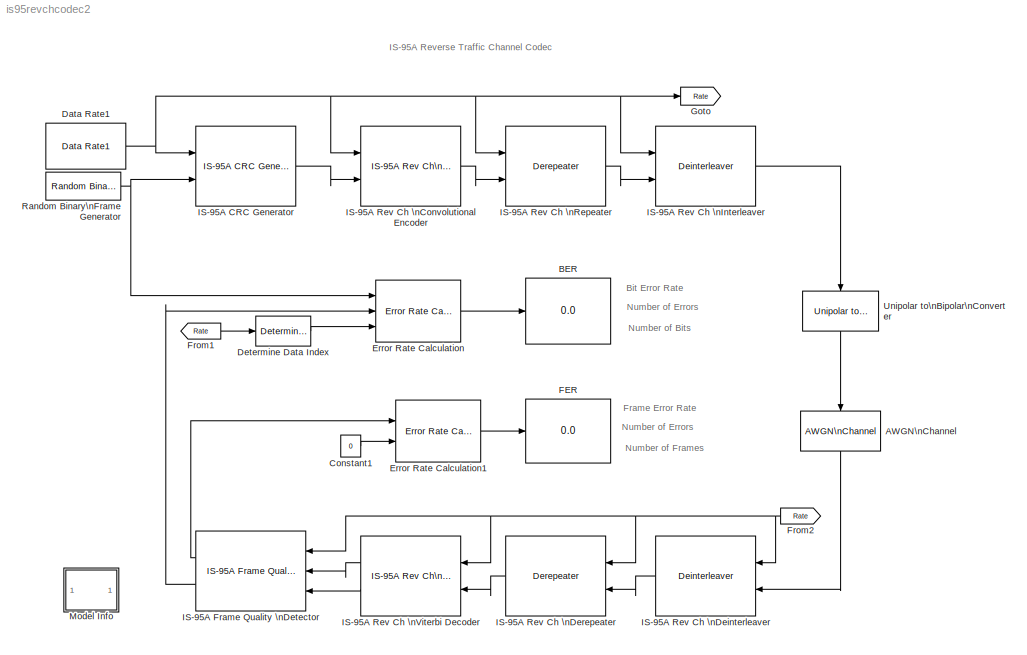
MODEL is95revchcodec2
KIND model
CONFIG AbsTol = 1e-6
CONFIG FixedStep = auto
CONFIG MaxStep = auto
CONFIG MinStep = auto
CONFIG RelTol = 1e-3
CONFIG Solver = VariableStepDiscrete
CONFIG SolverMode = SingleTasking
CONFIG StartTime = 0.0
CONFIG StopTime = 20
BLOCK [Reference] AWGN\nChannel  REF=commchan2/AWGN\nChannel
  EsNodB = -3
  Ports = [1, 1]
  Ps = 1
  SNRdB = 10
  SourceBlock = commchan2/AWGN\nChannel
  SourceType = AWGN Channel
  Tsym = 1/(50*576)
  noiseMode = Signal to noise ratio  (Es/No)
  seed = 11243
  variance = 1
BLOCK [Display] BER
  Decimation = 1
  Floating = off
  Format = short
  Ports = [1]
  SampleTime = -1
BLOCK [Constant] Constant1
  Value = 0
  VectorParams1D = on
BLOCK [Reference] Data Rate1  REF=cdmaprivate/Data Rate1  (lib defined in mdl_204704d9dd4c)
  Ports = [0, 1]
  SourceBlock = cdmaprivate/Data Rate1
  SourceType = Mobile Station Transmitter Data Rate
  rate = Full
BLOCK [Reference] Determine Data Index  REF=cdmaprivate/Determine Data Index  (lib defined in mdl_204704d9dd4c)
  Ports = [1, 1]
  SourceBlock = cdmaprivate/Determine Data Index
  SourceType = Determine Data Index
  rateSet = Rate Set I
BLOCK [Reference] Error Rate Calculation  REF=commsink2/Error Rate Calculation
  N = 0
  PMode = Port
  Ports = [3, 1]
  RsMode2 = off
  SourceBlock = commsink2/Error Rate Calculation
  SourceType = Error Rate Calculation
  WsName = ErrorVec
  cp_mode = Select samples from port
  st_delay = 4*268
  subframe = []
BLOCK [Reference] Error Rate Calculation1  REF=commsink2/Error Rate Calculation
  N = 0
  PMode = Port
  Ports = [2, 1]
  RsMode2 = off
  SourceBlock = commsink2/Error Rate Calculation
  SourceType = Error Rate Calculation
  WsName = ErrorVec
  cp_mode = Entire frame
  st_delay = 4
  subframe = []
BLOCK [Display] FER
  Decimation = 1
  Floating = off
  Format = short
  Ports = [1]
  SampleTime = -1
BLOCK [From] From1
  CloseFcn = tagdialog Close
  GotoTag = Rate
BLOCK [From] From2
  CloseFcn = tagdialog Close
  GotoTag = Rate
BLOCK [Goto] Goto
  GotoTag = Rate
  TagVisibility = local
BLOCK [Reference] IS-95A CRC Generator  REF=cdmalibv1p1/IS-95A Common/IS-95A CRC Generator  (lib defined in mdl_d5ab24ac8168)
  Ports = [2, 1]
  SourceBlock = cdmalibv1p1/IS-95A Common/IS-95A CRC Generator
  SourceType = IS-95A CRC Generator
  ch_type = Traffic
  rate_set = Rate Set I
BLOCK [Reference] IS-95A Frame Quality \nDetector  REF=cdmalibv1p1/IS-95A Common/IS-95A Frame Quality \nDetector  (lib defined in mdl_d5ab24ac8168)
  Ports = [3, 2]
  SourceBlock = cdmalibv1p1/IS-95A Common/IS-95A Frame Quality \nDetector
  SourceType = IS-95A Frame Quality Detector
  chType = Traffic
  rate2_metric = 0.9*1.5
  rate3_metric = 0.85*1.5
  rateSet = Rate Set I
BLOCK [Reference] IS-95A Rev Ch \nConvolutional Encoder  REF=cdmalibv1p1/IS-95A Mobile Station Transmitter/IS-95A Rev Ch\nConvolutional Encoder  (lib defined in mdl_d5ab24ac8168)
  Ports = [2, 1]
  SourceBlock = cdmalibv1p1/IS-95A Mobile Station Transmitter/IS-95A Rev Ch\nConvolutional Encoder
  SourceType = IS-95A Rev Ch Convolutional Encoder
  ch_type = Traffic
  enc_state = []
  rate_set = Rate Set I
BLOCK [Reference] IS-95A Rev Ch \nDeinterleaver  REF=cdmalibv1p1/IS-95A Mobile Station Transmitter/IS-95A Rev Ch\nInterleaver//Deinterleaver  (lib defined in mdl_d5ab24ac8168)
  Ports = [2, 1]
  SourceBlock = cdmalibv1p1/IS-95A Mobile Station Transmitter/IS-95A Rev Ch\nInterleaver//Deinterleaver
  SourceType = IS-95A Rev Ch Interleaver/Deinterleaver
  ch_type = Traffic
  int_select = Deinterleaver
BLOCK [Reference] IS-95A Rev Ch \nDerepeater  REF=cdmalibv1p1/IS-95A Mobile Station Transmitter/IS-95A Rev Ch\nRepeater//Derepeater  (lib defined in mdl_d5ab24ac8168)
  Ports = [2, 1]
  SourceBlock = cdmalibv1p1/IS-95A Mobile Station Transmitter/IS-95A Rev Ch\nRepeater//Derepeater
  SourceType = IS-95A Rev Ch Repeater/Derepeater
  ch_type = Traffic
  rep_select = Derepeater
BLOCK [Reference] IS-95A Rev Ch \nInterleaver  REF=cdmalibv1p1/IS-95A Mobile Station Transmitter/IS-95A Rev Ch\nInterleaver//Deinterleaver  (lib defined in mdl_d5ab24ac8168)
  Ports = [2, 1]
  SourceBlock = cdmalibv1p1/IS-95A Mobile Station Transmitter/IS-95A Rev Ch\nInterleaver//Deinterleaver
  SourceType = IS-95A Rev Ch Interleaver/Deinterleaver
  ch_type = Traffic
  int_select = Interleaver
BLOCK [Reference] IS-95A Rev Ch \nRepeater  REF=cdmalibv1p1/IS-95A Mobile Station Transmitter/IS-95A Rev Ch\nRepeater//Derepeater  (lib defined in mdl_d5ab24ac8168)
  Ports = [2, 1]
  SourceBlock = cdmalibv1p1/IS-95A Mobile Station Transmitter/IS-95A Rev Ch\nRepeater//Derepeater
  SourceType = IS-95A Rev Ch Repeater/Derepeater
  ch_type = Traffic
  rep_select = Repeater
BLOCK [Reference] IS-95A Rev Ch \nViterbi Decoder  REF=cdmalibv1p1/IS-95A Base Station Receiver/IS-95A Rev Ch\nViterbi Decoder  (lib defined in mdl_d5ab24ac8168)
  Ports = [2, 2]
  SourceBlock = cdmalibv1p1/IS-95A Base Station Receiver/IS-95A Rev Ch\nViterbi Decoder
  SourceType = IS-95A Rev Ch Viterbi Decoder
  chType = Traffic
  decodeLenRatio = 1
  rateSet = Rate Set I
  traceBackLenRatio = 1
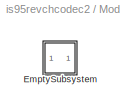
BLOCK [SubSystem] Model Info
  CopyFcn = slcm CopyBlock;
  DeleteFcn = slcm Cancel;
  InitFcn = slcm('UpdateAllCMBlocksInThisModelInit')
  LoadFcn = slcm LoadBlock;
  MaskCallbackString = ||||||||||||||||||||||||||||||
  MaskDescription = This block allows revision control information to be displayed within the model.
  MaskDisplay = text(str2num(LeftAlignmentValue), 0.5, MaskDisplayString, 'HorizontalAlignment', HorizontalTextAlignment)\n
  MaskEnableString = on,on,on,on,on,on,on,on,on,on,on,on,on,on,on,on,on,on,on,on,on,on,on,on,on,on,on,on,on,on,on
  MaskIconFrame = on
  MaskIconOpaque = on
  MaskIconRotate = none
  MaskIconUnits = normalized
  MaskPromptString = InitialSaveTempField|InitialBlockCM|BlockCM|Frame|SaveTempField|DisplayStringWithTags|MaskDisplayString|HorizontalTextAlignment|LeftAlignmentValue|SourceBlockDiagram|TagMaxNumber|CMTag1|CMTag2|CMTag3|CMTag4|CMTag5|CMTag6|CMTag7|CMTag8|CMTag9|CMTag10|CMTag11|CMTag12|CMTag13|CMTag14|CMTag15|CMTag16|CMTag17|CMTag18|CMTag19|CMTag20
  MaskSelfModifiable = on
  MaskStyleString = edit,edit,edit,edit,edit,edit,edit,edit,edit,edit,edit,edit,edit,edit,edit,edit,edit,edit,edit,edit,edit,edit,edit,edit,edit,edit,edit,edit,edit,edit,edit
  MaskToolTipString = on,on,on,on,on,on,on,on,on,on,on,on,on,on,on,on,on,on,on,on,on,on,on,on,on,on,on,on,on,on,on
  MaskTunableValueString = on,on,on,on,on,on,on,on,on,on,on,on,on,on,on,on,on,on,on,on,on,on,on,on,on,on,on,on,on,on,on
  MaskType = CMBlock
  MaskValueString = |none|none|on||Info|Info|Center|0.5|is95revchcodec2|20||||||||||||||||||||
  MaskVariableAliases = ,,,,,,,,,,,,,,,,,,,,,,,,,,,,,,
  MaskVariables = InitialSaveTempField=&1;InitialBlockCM=&2;BlockCM=&3;Frame=&4;SaveTempField=&5;DisplayStringWithTags=&6;MaskDisplayString=&7;HorizontalTextAlignment=&8;LeftAlignmentValue=&9;SourceBlockDiagram=&10;TagMaxNumber=@11;CMTag1=&12;CMTag2=&13;CMTag3=&14;CMTag4=&15;CMTag5=&16;CMTag6=&17;CMTag7=&18;CMTag8=&19;CMTag9=&20;CMTag10=&21;CMTag11=&22;CMTag12=&23;CMTag13=&24;CMTag14=&25;CMTag15=&26;CMTag16=&27;CMT...<+45ch>
  MaskVisibilityString = off,off,off,off,off,off,off,off,off,off,off,off,off,off,off,off,off,off,off,off,off,off,off,off,off,off,off,off,off,off,off
  NameChangeFcn = slcm Rename;
  OpenFcn = cdmademohelp;
  Ports = []
  PostSaveFcn = slcm('UpdateAllCMBlocksInThisModel')
  RTWFcnNameOpts = Auto
  RTWFileNameOpts = Auto
  RTWSystemCode = Auto
  ShowPortLabels = on
  TreatAsAtomicUnit = off
BLOCK [SubSystem] Model Info/EmptySubsystem
  Ports = []
  RTWFcnNameOpts = Auto
  RTWFileNameOpts = Auto
  RTWSystemCode = Auto
  ShowPortLabels = on
  TreatAsAtomicUnit = off
BLOCK [Reference] Random Binary\nFrame Generator  REF=cdmaprivate/Random Binary\nFrame Generator  (lib defined in mdl_204704d9dd4c)
  N = 268
  Ports = [0, 1]
  SourceBlock = cdmaprivate/Random Binary\nFrame Generator
  SourceType = Random Binary Frame Generator
  Ts = 1/(50*268)
  seed = 119940
BLOCK [Reference] Unipolar to\nBipolar\nConverter  REF=commutil2/Unipolar to\nBipolar\nConverter
  M = 2
  Ports = [1, 1]
  SourceBlock = commutil2/Unipolar to\nBipolar\nConverter
  SourceType = Unipolar to Bipolar Converter
  polarity = Negative
LINE AWGN\nChannel:1 -> IS-95A Rev Ch \nDeinterleaver:2
LINE Constant1:1 -> Error Rate Calculation1:2
NET Data Rate1:1 -> Goto:1, IS-95A CRC Generator:1, IS-95A Rev Ch \nConvolutional Encoder:1, IS-95A Rev Ch \nInterleaver:1, IS-95A Rev Ch \nRepeater:1
LINE Determine Data Index:1 -> Error Rate Calculation:3
LINE Error Rate Calculation1:1 -> FER:1
LINE Error Rate Calculation:1 -> BER:1
LINE From1:1 -> Determine Data Index:1
NET From2:1 -> IS-95A Frame Quality \nDetector:1, IS-95A Rev Ch \nDeinterleaver:1, IS-95A Rev Ch \nDerepeater:1, IS-95A Rev Ch \nViterbi Decoder:1
LINE IS-95A CRC Generator:1 -> IS-95A Rev Ch \nConvolutional Encoder:2
LINE IS-95A Frame Quality \nDetector:1 -> Error Rate Calculation1:1
LINE IS-95A Frame Quality \nDetector:2 -> Error Rate Calculation:2
LINE IS-95A Rev Ch \nConvolutional Encoder:1 -> IS-95A Rev Ch \nRepeater:2
LINE IS-95A Rev Ch \nDeinterleaver:1 -> IS-95A Rev Ch \nDerepeater:2
LINE IS-95A Rev Ch \nDerepeater:1 -> IS-95A Rev Ch \nViterbi Decoder:2
LINE IS-95A Rev Ch \nInterleaver:1 -> Unipolar to\nBipolar\nConverter:1
LINE IS-95A Rev Ch \nRepeater:1 -> IS-95A Rev Ch \nInterleaver:2
LINE IS-95A Rev Ch \nViterbi Decoder:1 -> IS-95A Frame Quality \nDetector:2
LINE IS-95A Rev Ch \nViterbi Decoder:2 -> IS-95A Frame Quality \nDetector:3
NET Random Binary\nFrame Generator:1 -> Error Rate Calculation:1, IS-95A CRC Generator:2
LINE Unipolar to\nBipolar\nConverter:1 -> AWGN\nChannel:1
note: NET lines group one-source signal fan-out (src -> all destinations, sorted); 1:1 wires keep LINE
